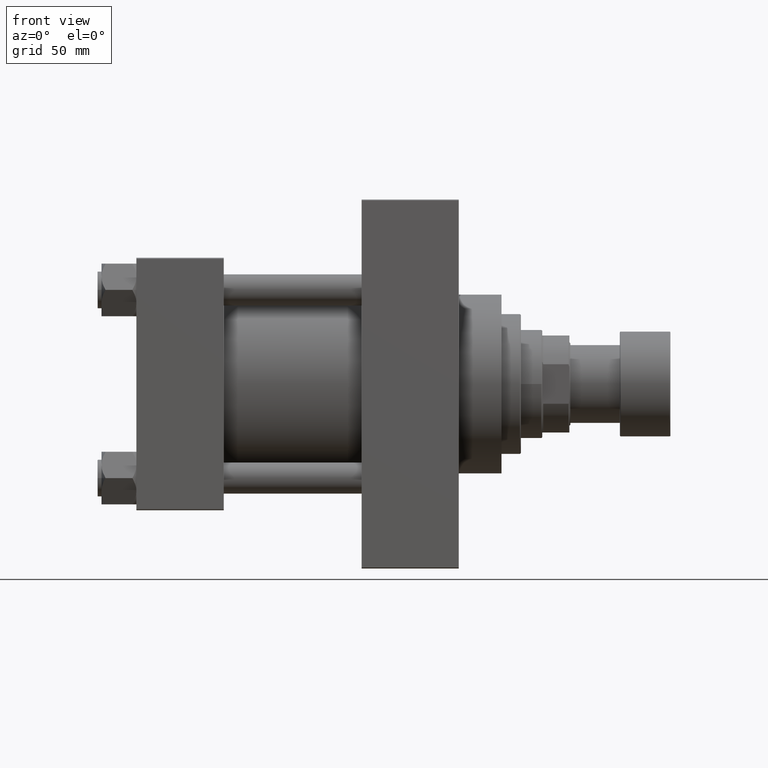
[diagram: clean part render]
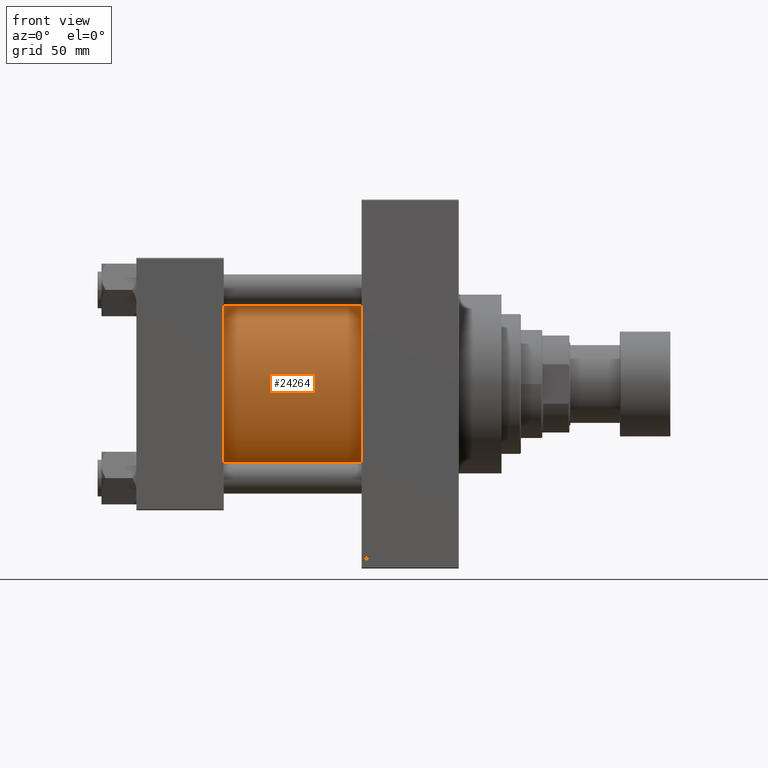
[diagram: same view with one face highlighted and labeled with its STEP entity id]
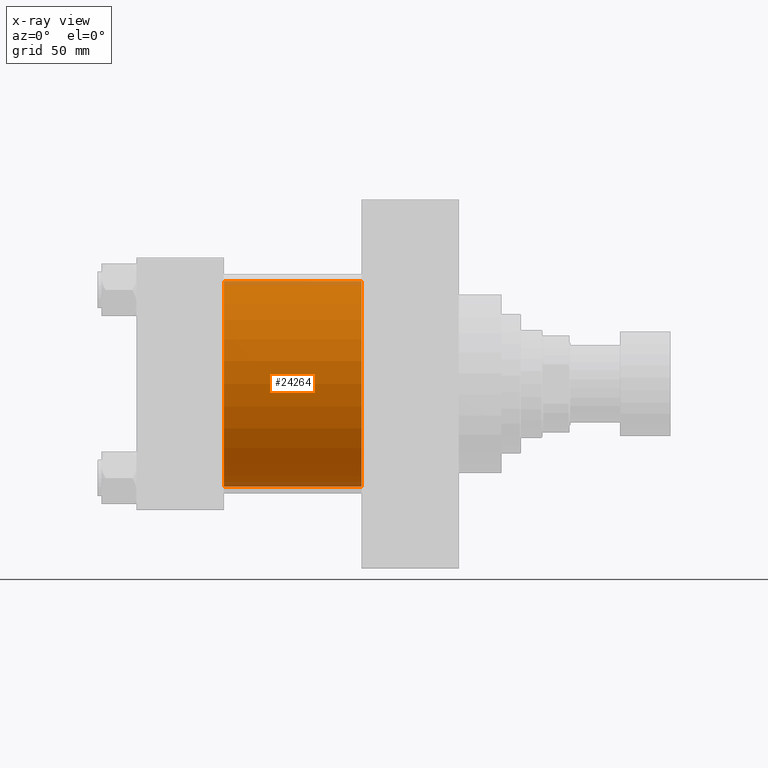
[diagram: x-ray of the same camera — body ghosted, the highlighted face saturated]
A machine part, front view. The second image highlights one B-rep face of the part: STEP entity #24264.
The next image is the same camera in x-ray: the body ghosted, the highlighted face saturated — about 4% of this face is hidden behind the body in this view.
In plain terms, the highlighted cylindrical surface (partial cylindrical patch) has radius 53 mm, axis along (-1, -0, -0).
Its self-contained STEP definition (entity closure, byte-faithful):
#1035 = EDGE_LOOP ( 'NONE', ( #24492, #19296, #27129, #34405 ) ) ;
#2280 = EDGE_CURVE ( 'NONE', #25807, #29308, #34066, .T. ) ;
#3584 = DIRECTION ( 'NONE',  ( 0.000000000000000000, 0.000000000000000000, 1.000000000000000000 ) ) ;
#3825 = DIRECTION ( 'NONE',  ( 1.000000000000000000, 0.000000000000000000, 0.000000000000000000 ) ) ;
#4173 = CARTESIAN_POINT ( 'NONE',  ( 115.9999999999999858, 3.888542821515762466E-15, -53.00000000000000711 ) ) ;
#5236 = LINE ( 'NONE', #48167, #30204 ) ;
#5804 = AXIS2_PLACEMENT_3D ( 'NONE', #14861, #13829, #29436 ) ;
#7127 = VERTEX_POINT ( 'NONE', #40411 ) ;
#7502 = AXIS2_PLACEMENT_3D ( 'NONE', #38844, #8168, #3584 ) ;
#7574 = DIRECTION ( 'NONE',  ( -1.000000000000000000, -0.000000000000000000, -0.000000000000000000 ) ) ;
#7672 = FACE_OUTER_BOUND ( 'NONE', #1035, .T. ) ;
#8168 = DIRECTION ( 'NONE',  ( -1.000000000000000000, -0.000000000000000000, -0.000000000000000000 ) ) ;
#9146 = VERTEX_POINT ( 'NONE', #17607 ) ;
#12302 = CIRCLE ( 'NONE', #5804, 53.00000000000000711 ) ;
#13829 = DIRECTION ( 'NONE',  ( 1.000000000000000000, -0.000000000000000000, 0.000000000000000000 ) ) ;
#14861 = CARTESIAN_POINT ( 'NONE',  ( 45.00000000000000000, -2.602085213965210642E-15, 0.000000000000000000 ) ) ;
#17607 = CARTESIAN_POINT ( 'NONE',  ( 45.00000000000000000, -2.602085213965210642E-15, 53.00000000000000711 ) ) ;
#19296 = ORIENTED_EDGE ( 'NONE', *, *, #2280, .F. ) ;
#20763 = EDGE_CURVE ( 'NONE', #25807, #9146, #5236, .T. ) ;
#21770 = CARTESIAN_POINT ( 'NONE',  ( 115.9999999999999858, -2.602085213965210642E-15, 53.00000000000000711 ) ) ;
#23278 = CYLINDRICAL_SURFACE ( 'NONE', #7502, 53.00000000000000711 ) ;
#23853 = VECTOR ( 'NONE', #7574, 1000.000000000000000 ) ;
#24264 = ADVANCED_FACE ( 'NONE', ( #7672 ), #23278, .T. ) ;
#24492 = ORIENTED_EDGE ( 'NONE', *, *, #47986, .F. ) ;
#25807 = VERTEX_POINT ( 'NONE', #21770 ) ;
#27006 = CARTESIAN_POINT ( 'NONE',  ( 115.9999999999999858, 3.888542821515762466E-15, -53.00000000000000711 ) ) ;
#27129 = ORIENTED_EDGE ( 'NONE', *, *, #20763, .T. ) ;
#27763 = DIRECTION ( 'NONE',  ( -1.000000000000000000, -0.000000000000000000, -0.000000000000000000 ) ) ;
#29308 = VERTEX_POINT ( 'NONE', #4173 ) ;
#29436 = DIRECTION ( 'NONE',  ( 0.000000000000000000, 0.000000000000000000, 1.000000000000000000 ) ) ;
#30204 = VECTOR ( 'NONE', #27763, 1000.000000000000000 ) ;
#34066 = CIRCLE ( 'NONE', #35705, 53.00000000000000711 ) ;
#34405 = ORIENTED_EDGE ( 'NONE', *, *, #45307, .T. ) ;
#35166 = LINE ( 'NONE', #27006, #23853 ) ;
#35705 = AXIS2_PLACEMENT_3D ( 'NONE', #43184, #3825, #42690 ) ;
#38844 = CARTESIAN_POINT ( 'NONE',  ( 115.9999999999999858, -2.602085213965210642E-15, 0.000000000000000000 ) ) ;
#40411 = CARTESIAN_POINT ( 'NONE',  ( 45.00000000000000000, 3.888542821515762466E-15, -53.00000000000000711 ) ) ;
#42690 = DIRECTION ( 'NONE',  ( 0.000000000000000000, 0.000000000000000000, -1.000000000000000000 ) ) ;
#43184 = CARTESIAN_POINT ( 'NONE',  ( 115.9999999999999858, -2.602085213965210642E-15, 0.000000000000000000 ) ) ;
#45307 = EDGE_CURVE ( 'NONE', #9146, #7127, #12302, .T. ) ;
#47986 = EDGE_CURVE ( 'NONE', #29308, #7127, #35166, .T. ) ;
#48167 = CARTESIAN_POINT ( 'NONE',  ( 115.9999999999999858, -2.602085213965210642E-15, 53.00000000000000711 ) ) ;